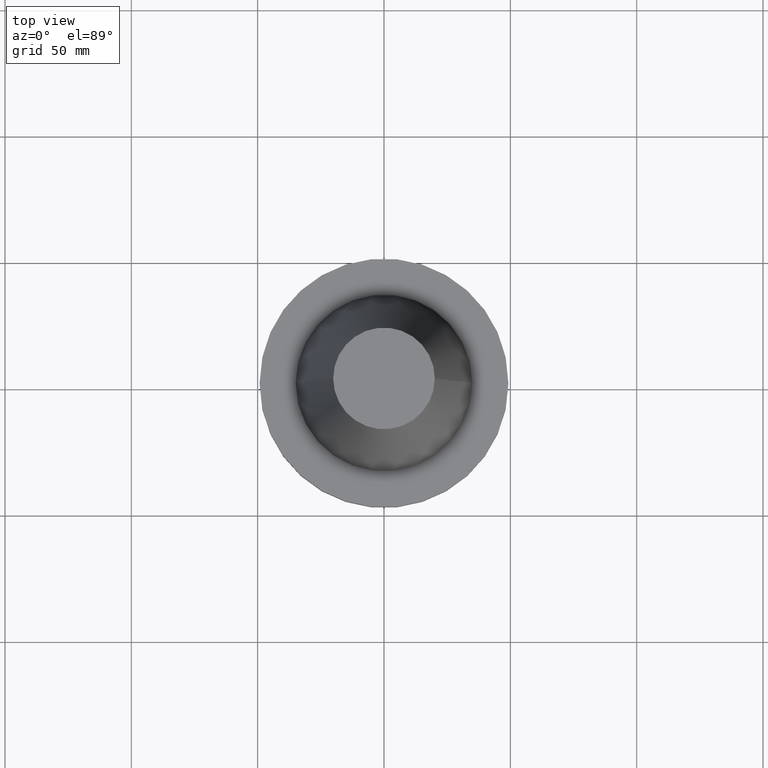
[diagram: clean part render]
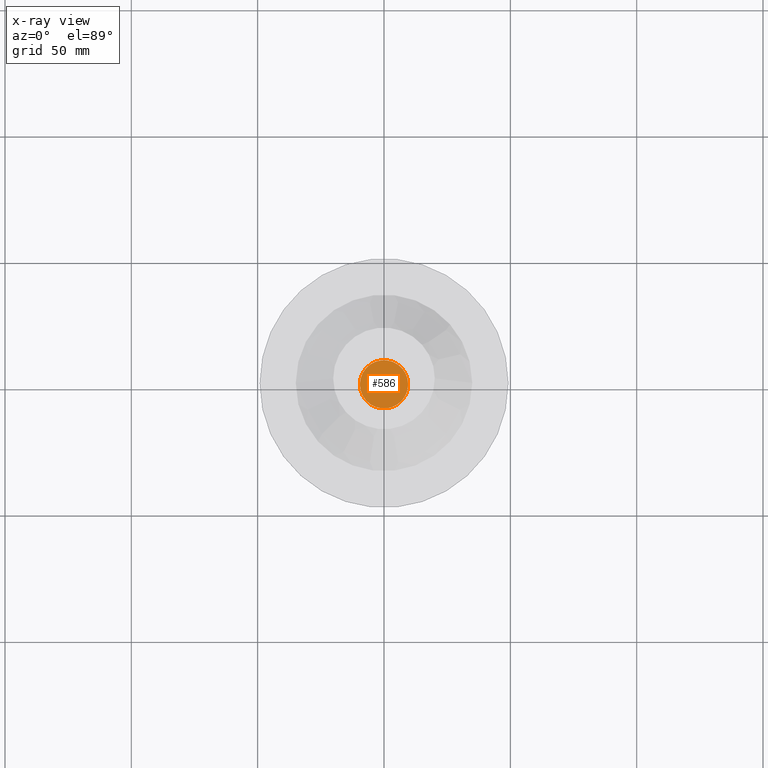
[diagram: x-ray — body ghosted, one internal face saturated and labeled with its STEP entity id]
A machine part, top view, then the same camera in x-ray: the body is ghosted and one INTERNAL B-rep face — a face not visible from any outside direction — is saturated and labeled: STEP entity #586.
In plain terms, the highlighted planar face has unit normal (0, -0, 1).
Its self-contained STEP definition (entity closure, byte-faithful):
#31 = ORIENTED_EDGE ( 'NONE', *, *, #564, .F. ) ;
#48 = DIRECTION ( 'NONE',  ( -0.000000000000000000, -0.000000000000000000, 1.000000000000000000 ) ) ;
#105 = CARTESIAN_POINT ( 'NONE',  ( 0.000000000000000000, 0.000000000000000000, -35.04999999999999716 ) ) ;
#177 = DIRECTION ( 'NONE',  ( 1.000000000000000000, 0.000000000000000000, 0.000000000000000000 ) ) ;
#253 = PLANE ( 'NONE',  #846 ) ;
#257 = CARTESIAN_POINT ( 'NONE',  ( 0.000000000000000000, 0.000000000000000000, -35.04999999999999716 ) ) ;
#261 = VERTEX_POINT ( 'NONE', #821 ) ;
#331 = EDGE_CURVE ( 'NONE', #477, #261, #592, .T. ) ;
#361 = EDGE_LOOP ( 'NONE', ( #31, #512 ) ) ;
#362 = AXIS2_PLACEMENT_3D ( 'NONE', #257, #587, #793 ) ;
#413 = CIRCLE ( 'NONE', #362, 9.550000000000000711 ) ;
#429 = AXIS2_PLACEMENT_3D ( 'NONE', #105, #48, #177 ) ;
#455 = CARTESIAN_POINT ( 'NONE',  ( -9.550000000000000711, 1.169537693185722558E-15, -35.04999999999999716 ) ) ;
#459 = DIRECTION ( 'NONE',  ( 1.000000000000000000, 0.000000000000000000, 0.000000000000000000 ) ) ;
#477 = VERTEX_POINT ( 'NONE', #455 ) ;
#512 = ORIENTED_EDGE ( 'NONE', *, *, #331, .F. ) ;
#522 = CARTESIAN_POINT ( 'NONE',  ( 0.000000000000000000, 34.92499999999999716, -35.04999999999999716 ) ) ;
#536 = FACE_OUTER_BOUND ( 'NONE', #361, .T. ) ;
#564 = EDGE_CURVE ( 'NONE', #261, #477, #413, .T. ) ;
#586 = ADVANCED_FACE ( 'NONE', ( #536 ), #253, .F. ) ;
#587 = DIRECTION ( 'NONE',  ( -0.000000000000000000, -0.000000000000000000, 1.000000000000000000 ) ) ;
#592 = CIRCLE ( 'NONE', #429, 9.550000000000000711 ) ;
#784 = DIRECTION ( 'NONE',  ( 0.000000000000000000, -0.000000000000000000, 1.000000000000000000 ) ) ;
#793 = DIRECTION ( 'NONE',  ( 1.000000000000000000, 0.000000000000000000, 0.000000000000000000 ) ) ;
#821 = CARTESIAN_POINT ( 'NONE',  ( 9.550000000000000711, 0.000000000000000000, -35.04999999999999716 ) ) ;
#846 = AXIS2_PLACEMENT_3D ( 'NONE', #522, #784, #459 ) ;